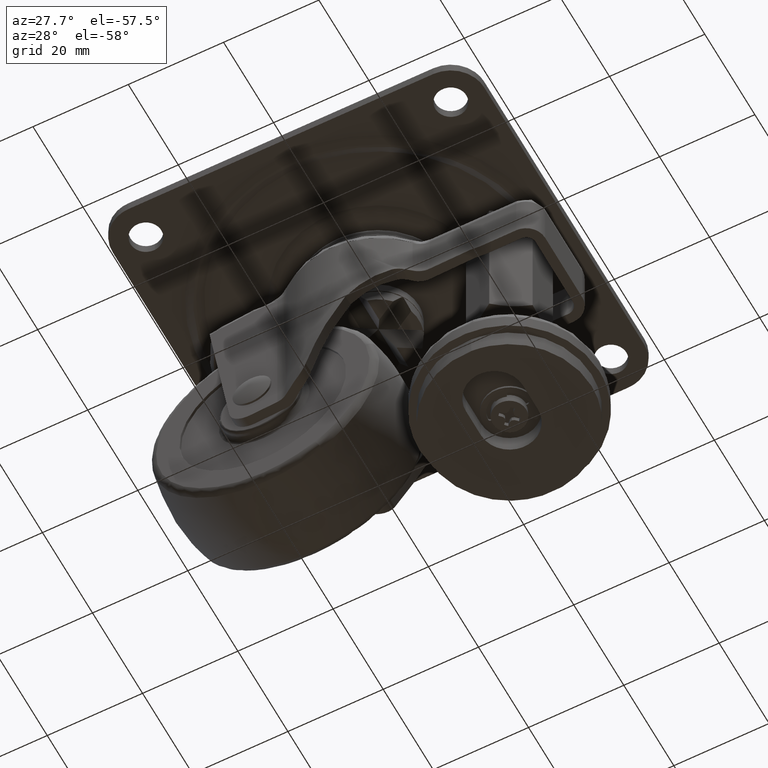
[diagram: clean part render]
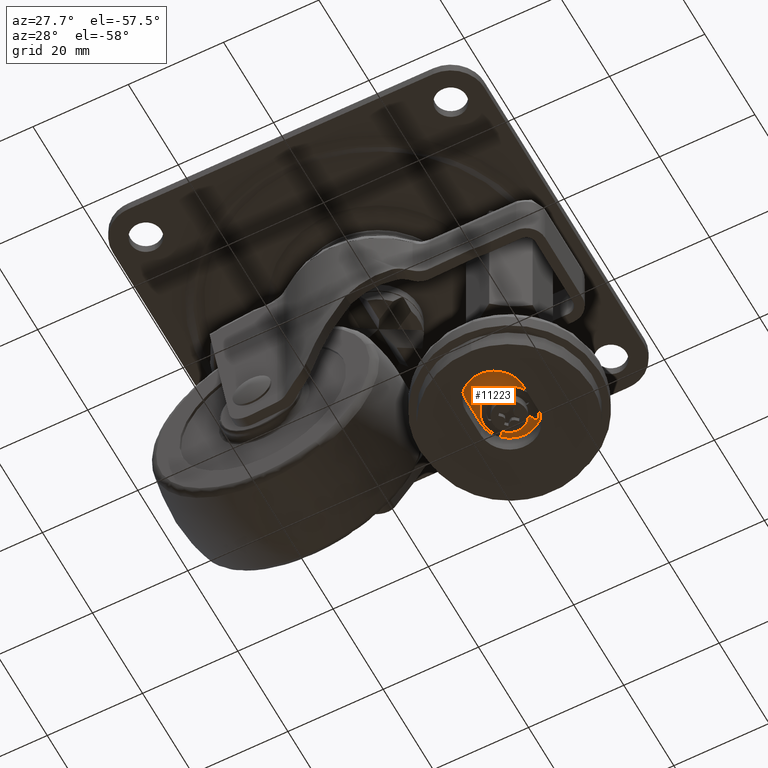
[diagram: same view with one face highlighted and labeled with its STEP entity id]
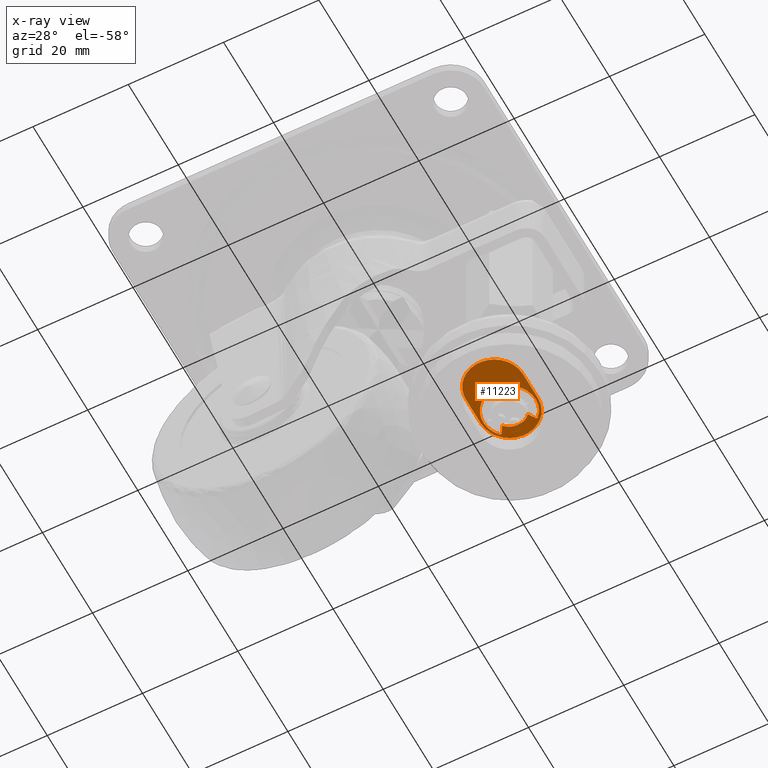
[diagram: x-ray of the same camera — body ghosted, the highlighted face saturated]
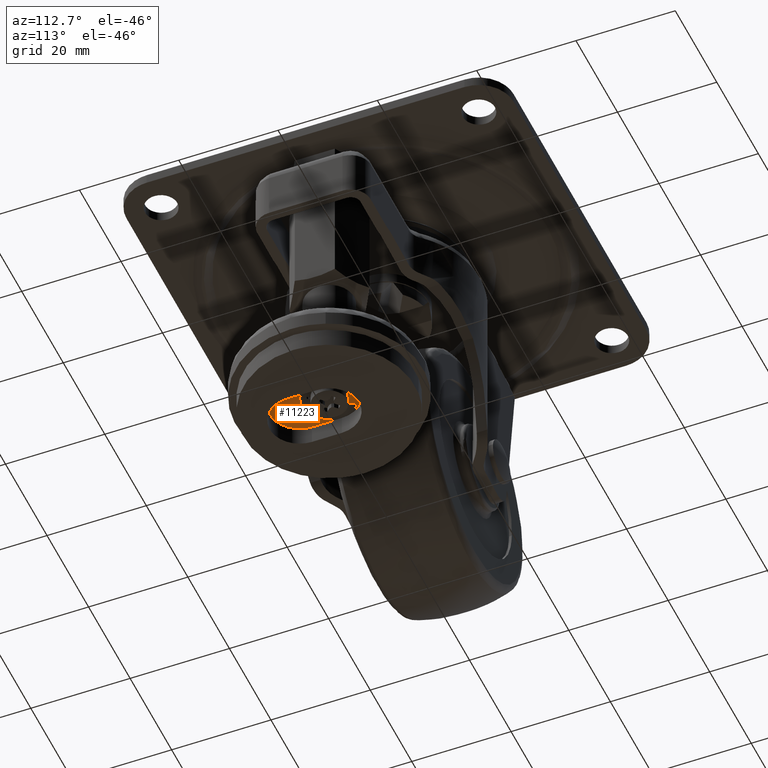
[diagram: same view with one face highlighted and labeled with its STEP entity id]
A machine part, auxiliary view. The second image highlights one B-rep face of the part: STEP entity #11223.
The next image is the same camera in x-ray: the body ghosted, the highlighted face saturated — about 0% of this face is hidden behind the body in this view.
A second angle (auxiliary view) of the same face is appended — the face is thin or edge-on in the first view.
In plain terms, the highlighted face is a freeform B-spline surface patch.
Its self-contained STEP definition (entity closure, byte-faithful):
#7666=CARTESIAN_POINT('',(29.622800681493519,2.782770322789255,-65.0));
#7667=VERTEX_POINT('',#7666);
#7673=CARTESIAN_POINT('',(30.199598803293100,2.227618702363960,-65.0));
#7674=VERTEX_POINT('',#7673);
#7675=CARTESIAN_POINT('',(29.622800681493516,2.782770322789255,-65.0));
#7676=CARTESIAN_POINT('',(29.943154388066333,2.538395135487655,-65.0));
#7677=CARTESIAN_POINT('',(30.199598803293110,2.227618702363971,-65.0));
#7685=(BOUNDED_CURVE()B_SPLINE_CURVE(2,(#7675,#7676,#7677),.UNSPECIFIED.,.F.,.U.)B_SPLINE_CURVE_WITH_KNOTS((3,3),(0.868382689799924,1.0),.UNSPECIFIED.)CURVE()GEOMETRIC_REPRESENTATION_ITEM()RATIONAL_B_SPLINE_CURVE((0.962980898053393,0.974877279136872,1.0))REPRESENTATION_ITEM(''));
#7686=EDGE_CURVE('',#7667,#7674,#7685,.T.);
#7798=CARTESIAN_POINT('',(24.800447966175248,2.227622058586020,-65.0));
#7799=VERTEX_POINT('',#7798);
#7805=CARTESIAN_POINT('',(27.379620408023580,3.497928452191317,-65.0));
#7806=VERTEX_POINT('',#7805);
#7807=CARTESIAN_POINT('',(24.800447966175231,2.227622058586034,-65.0));
#7808=CARTESIAN_POINT('',(25.803918534362964,3.443691489729339,-65.0));
#7809=CARTESIAN_POINT('',(27.379620408023580,3.497928452191317,-65.0));
#7817=(BOUNDED_CURVE()B_SPLINE_CURVE(2,(#7807,#7808,#7809),.UNSPECIFIED.,.F.,.U.)B_SPLINE_CURVE_WITH_KNOTS((3,3),(0.0,0.479899273237133),.UNSPECIFIED.)CURVE()GEOMETRIC_REPRESENTATION_ITEM()RATIONAL_B_SPLINE_CURVE((1.0,0.908398253500036,0.992634953290411))REPRESENTATION_ITEM(''));
#7818=EDGE_CURVE('',#7799,#7806,#7817,.T.);
#7890=CARTESIAN_POINT('',(27.379620408023580,3.497928452191317,-65.0));
#7891=CARTESIAN_POINT('',(27.439804470677196,3.500000037433119,-65.0));
#7892=CARTESIAN_POINT('',(27.500024175671239,3.499999999999324,-65.0));
#7893=CARTESIAN_POINT('',(28.682578588557725,3.499999264899430,-65.0));
#7894=CARTESIAN_POINT('',(29.622800681493516,2.782770322789255,-65.0));
#7902=(BOUNDED_CURVE()B_SPLINE_CURVE(2,(#7890,#7891,#7892,#7893,#7894),.UNSPECIFIED.,.F.,.U.)B_SPLINE_CURVE_WITH_KNOTS((3,2,3),(0.479899273237133,0.500000000000000,0.868382689799924),.UNSPECIFIED.)CURVE()GEOMETRIC_REPRESENTATION_ITEM()RATIONAL_B_SPLINE_CURVE((0.992634953290411,0.996163233036431,1.0,0.929684207399595,0.962980898053393))REPRESENTATION_ITEM(''));
#7903=EDGE_CURVE('',#7806,#7667,#7902,.T.);
#9918=CARTESIAN_POINT('',(30.977361608102900,3.574747600964020,-65.0));
#9919=VERTEX_POINT('',#9918);
#9920=CARTESIAN_POINT('',(30.977361608102900,3.574747600964020,-65.0));
#9921=CARTESIAN_POINT('',(30.199598803293100,2.227618702363960,-65.0));
#9922=QUASI_UNIFORM_CURVE('',1,(#9920,#9921),.UNSPECIFIED.,.F.,.U.);
#9923=EDGE_CURVE('',#9919,#7674,#9922,.T.);
#9949=CARTESIAN_POINT('',(31.623671614149750,3.639436914450105,-65.0));
#9950=VERTEX_POINT('',#9949);
#9951=CARTESIAN_POINT('',(30.977361608102900,3.574747600964022,-65.0));
#9952=CARTESIAN_POINT('',(31.079892424106351,3.752336656052504,-65.0));
#9953=CARTESIAN_POINT('',(31.283934957796859,3.772759319020595,-65.0));
#9954=CARTESIAN_POINT('',(31.487977491487378,3.793181981988686,-65.0));
#9955=CARTESIAN_POINT('',(31.623671614149739,3.639436914450099,-65.0));
#9963=(BOUNDED_CURVE()B_SPLINE_CURVE(2,(#9951,#9952,#9953,#9954,#9955),.UNSPECIFIED.,.F.,.U.)B_SPLINE_CURVE_WITH_KNOTS((3,2,3),(0.0,0.500000000000000,1.0),.UNSPECIFIED.)CURVE()GEOMETRIC_REPRESENTATION_ITEM()RATIONAL_B_SPLINE_CURVE((1.0,0.889877221841679,1.0,0.889877221841679,1.0))REPRESENTATION_ITEM(''));
#9964=EDGE_CURVE('',#9919,#9950,#9963,.T.);
#9998=CARTESIAN_POINT('',(23.376369268980550,3.639435142155395,-65.0));
#9999=VERTEX_POINT('',#9998);
#10000=CARTESIAN_POINT('',(31.623671614149750,3.639436914450105,-65.0));
#10001=CARTESIAN_POINT('',(35.115020786522230,-0.316423213481848,-65.0));
#10002=CARTESIAN_POINT('',(31.307522349911910,-3.968997426826837,-65.0));
#10003=CARTESIAN_POINT('',(27.500023913301604,-7.621571640171826,-65.0));
#10004=CARTESIAN_POINT('',(23.692523224535439,-3.968999063243459,-65.0));
#10005=CARTESIAN_POINT('',(19.885022535769266,-0.316426486315096,-65.0));
#10006=CARTESIAN_POINT('',(23.376369268980550,3.639435142155395,-65.0));
#10014=(BOUNDED_CURVE()B_SPLINE_CURVE(2,(#10000,#10001,#10002,#10003,#10004,#10005,#10006),.UNSPECIFIED.,.F.,.U.)B_SPLINE_CURVE_WITH_KNOTS((3,2,2,3),(0.0,0.333333333333333,0.666666666666667,1.0),.UNSPECIFIED.)CURVE()GEOMETRIC_REPRESENTATION_ITEM()RATIONAL_B_SPLINE_CURVE((1.0,0.721635974522306,1.0,0.721635974522306,1.0,0.721635974522306,1.0))REPRESENTATION_ITEM(''));
#10015=EDGE_CURVE('',#9950,#9999,#10014,.T.);
#10041=CARTESIAN_POINT('',(24.022681979999401,3.574748314391820,-65.0));
#10042=VERTEX_POINT('',#10041);
#10043=CARTESIAN_POINT('',(23.376369268980550,3.639435142155395,-65.0));
#10044=CARTESIAN_POINT('',(23.512062785376351,3.793181825883125,-65.0));
#10045=CARTESIAN_POINT('',(23.716106508747352,3.772759914067199,-65.0));
#10046=CARTESIAN_POINT('',(23.920150232118353,3.752338002251273,-65.0));
#10047=CARTESIAN_POINT('',(24.022681979999401,3.574748314391820,-65.0));
#10055=(BOUNDED_CURVE()B_SPLINE_CURVE(2,(#10043,#10044,#10045,#10046,#10047),.UNSPECIFIED.,.F.,.U.)B_SPLINE_CURVE_WITH_KNOTS((3,2,3),(0.0,0.500000000000000,1.0),.UNSPECIFIED.)CURVE()GEOMETRIC_REPRESENTATION_ITEM()RATIONAL_B_SPLINE_CURVE((1.0,0.889876489789620,1.0,0.889876489789620,1.0))REPRESENTATION_ITEM(''));
#10056=EDGE_CURVE('',#9999,#10042,#10055,.T.);
#10073=CARTESIAN_POINT('',(24.800447966175248,2.227622058586020,-65.0));
#10074=CARTESIAN_POINT('',(24.022681979999401,3.574748314391820,-65.0));
#10075=QUASI_UNIFORM_CURVE('',1,(#10073,#10074),.UNSPECIFIED.,.F.,.U.);
#10076=EDGE_CURVE('',#7799,#10042,#10075,.T.);
#10941=CARTESIAN_POINT('',(33.500021999999987,1.469528E-015,-65.0));
#10942=VERTEX_POINT('',#10941);
#10948=CARTESIAN_POINT('',(21.500022000000001,0.0,-65.0));
#10949=VERTEX_POINT('',#10948);
#10950=CARTESIAN_POINT('',(21.500022000000001,0.0,-65.0));
#10951=CARTESIAN_POINT('',(21.500022000000001,6.0,-65.0));
#10952=CARTESIAN_POINT('',(27.500022000000001,6.0,-65.0));
#10953=CARTESIAN_POINT('',(33.500022000000001,6.0,-65.0));
#10954=CARTESIAN_POINT('',(33.500021999999987,0.0,-65.0));
#10962=(BOUNDED_CURVE()B_SPLINE_CURVE(2,(#10950,#10951,#10952,#10953,#10954),.UNSPECIFIED.,.F.,.U.)B_SPLINE_CURVE_WITH_KNOTS((3,2,3),(0.0,0.500000000000000,1.0),.UNSPECIFIED.)CURVE()GEOMETRIC_REPRESENTATION_ITEM()RATIONAL_B_SPLINE_CURVE((1.0,0.707106781186548,1.0,0.707106781186548,1.0))REPRESENTATION_ITEM(''));
#10963=EDGE_CURVE('',#10949,#10942,#10962,.T.);
#10986=CARTESIAN_POINT('',(21.500022000000001,-6.0,-65.0));
#10987=VERTEX_POINT('',#10986);
#10988=CARTESIAN_POINT('',(21.500022000000001,-6.0,-65.0));
#10989=CARTESIAN_POINT('',(21.500022000000001,0.0,-65.0));
#10990=QUASI_UNIFORM_CURVE('',1,(#10988,#10989),.UNSPECIFIED.,.F.,.U.);
#10991=EDGE_CURVE('',#10987,#10949,#10990,.T.);
#11037=CARTESIAN_POINT('',(33.500021999999987,-6.0,-65.0));
#11038=VERTEX_POINT('',#11037);
#11039=CARTESIAN_POINT('',(33.500021999999987,-6.0,-65.0));
#11040=CARTESIAN_POINT('',(33.500022000000001,-12.0,-65.0));
#11041=CARTESIAN_POINT('',(27.500022000000001,-12.0,-65.0));
#11042=CARTESIAN_POINT('',(21.500022000000001,-12.0,-65.0));
#11043=CARTESIAN_POINT('',(21.500022000000001,-6.0,-65.0));
#11051=(BOUNDED_CURVE()B_SPLINE_CURVE(2,(#11039,#11040,#11041,#11042,#11043),.UNSPECIFIED.,.F.,.U.)B_SPLINE_CURVE_WITH_KNOTS((3,2,3),(0.0,0.500000000000000,1.0),.UNSPECIFIED.)CURVE()GEOMETRIC_REPRESENTATION_ITEM()RATIONAL_B_SPLINE_CURVE((1.0,0.707106781186548,1.0,0.707106781186548,1.0))REPRESENTATION_ITEM(''));
#11052=EDGE_CURVE('',#11038,#10987,#11051,.T.);
#11073=CARTESIAN_POINT('',(33.500021999999987,1.469528E-015,-65.0));
#11074=CARTESIAN_POINT('',(33.500021999999987,-6.0,-65.0));
#11075=QUASI_UNIFORM_CURVE('',1,(#11073,#11074),.UNSPECIFIED.,.F.,.U.);
#11076=EDGE_CURVE('',#10942,#11038,#11075,.T.);
#11202=CARTESIAN_POINT('',(20.900622881565219,-12.899099965112420,-65.0));
#11203=CARTESIAN_POINT('',(34.099423156913637,-12.899099965112420,-65.0));
#11204=CARTESIAN_POINT('',(20.900622881565219,6.899100447910043,-65.0));
#11205=CARTESIAN_POINT('',(34.099423156913637,6.899100447910043,-65.0));
#11206=B_SPLINE_SURFACE_WITH_KNOTS('',1,1,((#11202,#11204),(#11203,#11205)),.UNSPECIFIED.,.F.,.F.,.U.,(2,2),(2,2),(0.0,13.198800275348420),(0.0,19.798200413022460),.UNSPECIFIED.);
#11207=ORIENTED_EDGE('',*,*,#11076,.T.);
#11208=ORIENTED_EDGE('',*,*,#11052,.T.);
#11209=ORIENTED_EDGE('',*,*,#10991,.T.);
#11210=ORIENTED_EDGE('',*,*,#10963,.T.);
#11211=EDGE_LOOP('',(#11207,#11208,#11209,#11210));
#11212=FACE_OUTER_BOUND('',#11211,.T.);
#11213=ORIENTED_EDGE('',*,*,#10076,.T.);
#11214=ORIENTED_EDGE('',*,*,#10056,.F.);
#11215=ORIENTED_EDGE('',*,*,#10015,.F.);
#11216=ORIENTED_EDGE('',*,*,#9964,.F.);
#11217=ORIENTED_EDGE('',*,*,#9923,.T.);
#11218=ORIENTED_EDGE('',*,*,#7686,.F.);
#11219=ORIENTED_EDGE('',*,*,#7903,.F.);
#11220=ORIENTED_EDGE('',*,*,#7818,.F.);
#11221=EDGE_LOOP('',(#11213,#11214,#11215,#11216,#11217,#11218,#11219,#11220));
#11222=FACE_BOUND('',#11221,.T.);
#11223=ADVANCED_FACE('',(#11212,#11222),#11206,.F.);